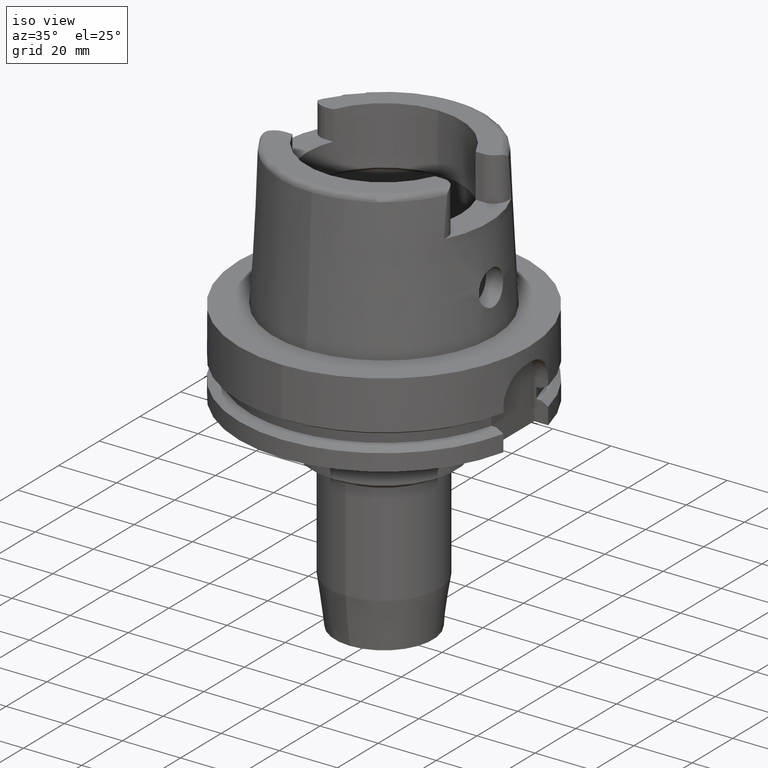
[diagram: clean part render]
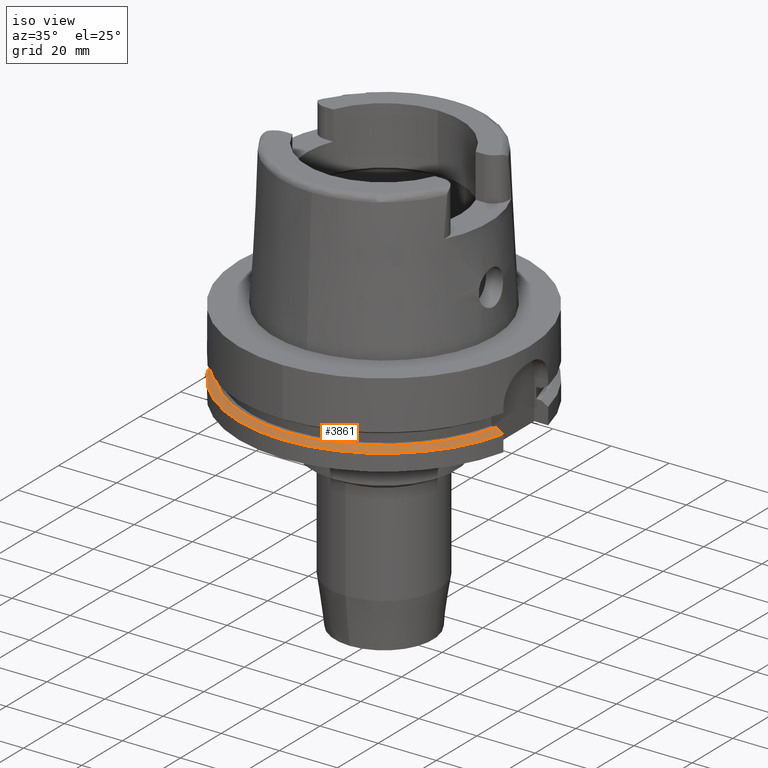
[diagram: same view with one face highlighted and labeled with its STEP entity id]
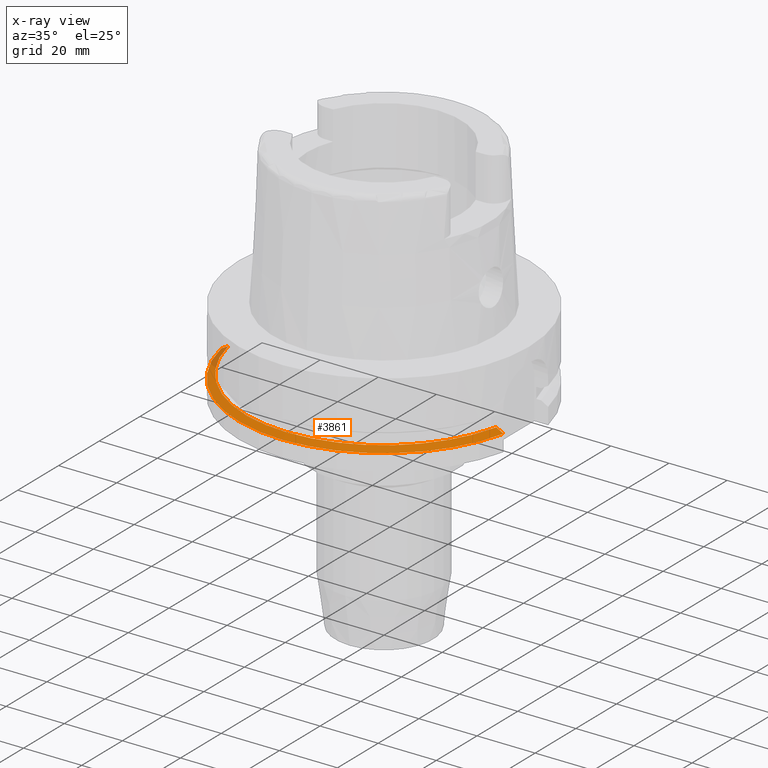
[diagram: x-ray of the same camera — body ghosted, the highlighted face saturated]
A machine part, iso view. The second image highlights one B-rep face of the part: STEP entity #3861.
The next image is the same camera in x-ray: the body ghosted, the highlighted face saturated — about 4% of this face is hidden behind the body in this view.
In plain terms, the highlighted conical surface has half-angle 60 deg.
Its self-contained STEP definition (entity closure, byte-faithful):
#1864=CARTESIAN_POINT('',(0.E0,0.E0,-2.1875E1));
#1865=DIRECTION('',(0.E0,0.E0,-1.E0));
#1866=DIRECTION('',(9.729578356533E-1,-2.309827916554E-1,0.E0));
#1867=AXIS2_PLACEMENT_3D('',#1864,#1865,#1866);
#1872=CARTESIAN_POINT('',(0.E0,0.E0,-2.1875E1));
#1873=DIRECTION('',(0.E0,0.E0,-1.E0));
#1874=DIRECTION('',(0.E0,-1.E0,0.E0));
#1875=AXIS2_PLACEMENT_3D('',#1872,#1873,#1874);
#1880=CARTESIAN_POINT('',(-4.898979485566E1,-1.E1,-2.324759526419E1));
#1881=CARTESIAN_POINT('',(-4.872002593966E1,-1.E1,-2.309499092031E1));
#1882=CARTESIAN_POINT('',(-4.818041161677E1,-1.E1,-2.278984413389E1));
#1883=CARTESIAN_POINT('',(-4.737076227629E1,-1.E1,-2.233230648793E1));
#1884=CARTESIAN_POINT('',(-4.683084020607E1,-1.E1,-2.202741066863E1));
#1885=CARTESIAN_POINT('',(-4.656083740331E1,-1.E1,-2.1875E1));
#1890=CARTESIAN_POINT('',(4.633477721644E1,-1.1E1,-2.1875E1));
#1891=CARTESIAN_POINT('',(4.660605711265E1,-1.1E1,-2.202738808211E1));
#1892=CARTESIAN_POINT('',(4.714851446811E1,-1.1E1,-2.233225649733E1));
#1893=CARTESIAN_POINT('',(4.796191616323E1,-1.1E1,-2.278979543230E1));
#1894=CARTESIAN_POINT('',(4.850399904748E1,-1.1E1,-2.309496975038E1));
#1895=CARTESIAN_POINT('',(4.877499359303E1,-1.1E1,-2.324759526419E1));
#1900=CARTESIAN_POINT('',(0.E0,0.E0,-2.324759526419E1));
#1901=DIRECTION('',(0.E0,0.E0,-1.E0));
#1902=DIRECTION('',(9.754998718606E-1,-2.2E-1,0.E0));
#1903=AXIS2_PLACEMENT_3D('',#1900,#1901,#1902);
#1908=CARTESIAN_POINT('',(0.E0,0.E0,-2.324759526419E1));
#1909=DIRECTION('',(0.E0,0.E0,-1.E0));
#1910=DIRECTION('',(0.E0,-1.E0,0.E0));
#1911=AXIS2_PLACEMENT_3D('',#1908,#1909,#1910);
#2386=CARTESIAN_POINT('',(-4.898979485566E1,-1.E1,-2.324759526419E1));
#2387=VERTEX_POINT('',#2386);
#2388=CARTESIAN_POINT('',(4.877499359303E1,-1.1E1,-2.324759526419E1));
#2389=CARTESIAN_POINT('',(0.E0,-5.E1,-2.324759526419E1));
#2390=VERTEX_POINT('',#2388);
#2391=VERTEX_POINT('',#2389);
#2411=CARTESIAN_POINT('',(-4.656083740331E1,-1.E1,-2.1875E1));
#2412=VERTEX_POINT('',#2411);
#2427=CARTESIAN_POINT('',(3.839522673045E-14,-4.762259526419E1,-2.1875E1));
#2428=VERTEX_POINT('',#2427);
#2429=CARTESIAN_POINT('',(4.633477721644E1,-1.1E1,-2.1875E1));
#2430=VERTEX_POINT('',#2429);
#3848=CARTESIAN_POINT('',(0.E0,0.E0,-2.256129763210E1));
#3849=DIRECTION('',(0.E0,0.E0,-1.E0));
#3850=DIRECTION('',(0.E0,-1.E0,0.E0));
#3851=AXIS2_PLACEMENT_3D('',#3848,#3849,#3850);
#3852=CONICAL_SURFACE('',#3851,4.881129763209E1,6.E1);
#3853=ORIENTED_EDGE('',*,*,#3518,.T.);
#3854=ORIENTED_EDGE('',*,*,#3843,.F.);
#3855=ORIENTED_EDGE('',*,*,#3841,.F.);
#3856=ORIENTED_EDGE('',*,*,#3463,.T.);
#3857=ORIENTED_EDGE('',*,*,#3490,.T.);
#3858=ORIENTED_EDGE('',*,*,#3488,.T.);
#3859=EDGE_LOOP('',(#3853,#3854,#3855,#3856,#3857,#3858));
#3860=FACE_OUTER_BOUND('',#3859,.F.);
#1868=CIRCLE('',#1867,4.762259526419E1);
#1876=CIRCLE('',#1875,4.762259526419E1);
#1886=B_SPLINE_CURVE_WITH_KNOTS('',3,(#1880,#1881,#1882,#1883,#1884,#1885),
.UNSPECIFIED.,.F.,.F.,(4,1,1,4),(0.E0,3.333333333333E-1,6.666666666667E-1,1.E0),
.UNSPECIFIED.);
#1896=B_SPLINE_CURVE_WITH_KNOTS('',3,(#1890,#1891,#1892,#1893,#1894,#1895),
.UNSPECIFIED.,.F.,.F.,(4,1,1,4),(0.E0,3.333333333333E-1,6.666666666667E-1,1.E0),
.UNSPECIFIED.);
#1904=CIRCLE('',#1903,5.E1);
#1912=CIRCLE('',#1911,5.E1);
#3463=EDGE_CURVE('',#2430,#2390,#1896,.T.);
#3488=EDGE_CURVE('',#2391,#2387,#1912,.T.);
#3490=EDGE_CURVE('',#2390,#2391,#1904,.T.);
#3518=EDGE_CURVE('',#2387,#2412,#1886,.T.);
#3841=EDGE_CURVE('',#2430,#2428,#1868,.T.);
#3843=EDGE_CURVE('',#2428,#2412,#1876,.T.);
#3861=ADVANCED_FACE('',(#3860),#3852,.T.);